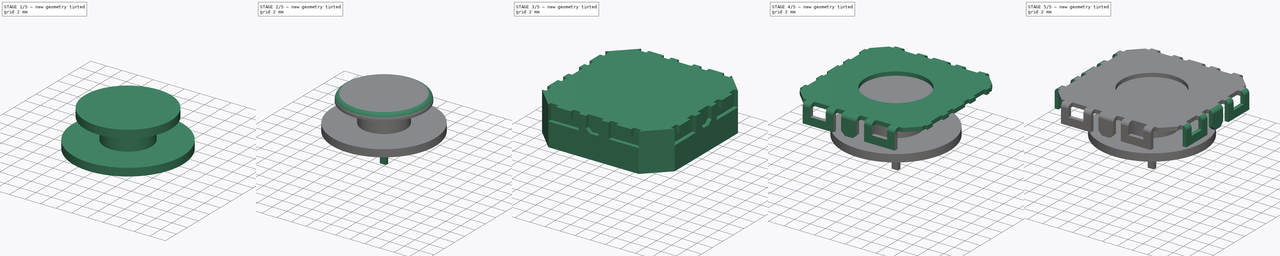
[diagram: build sequence overview — one tinted view per stage of 5, left to right]
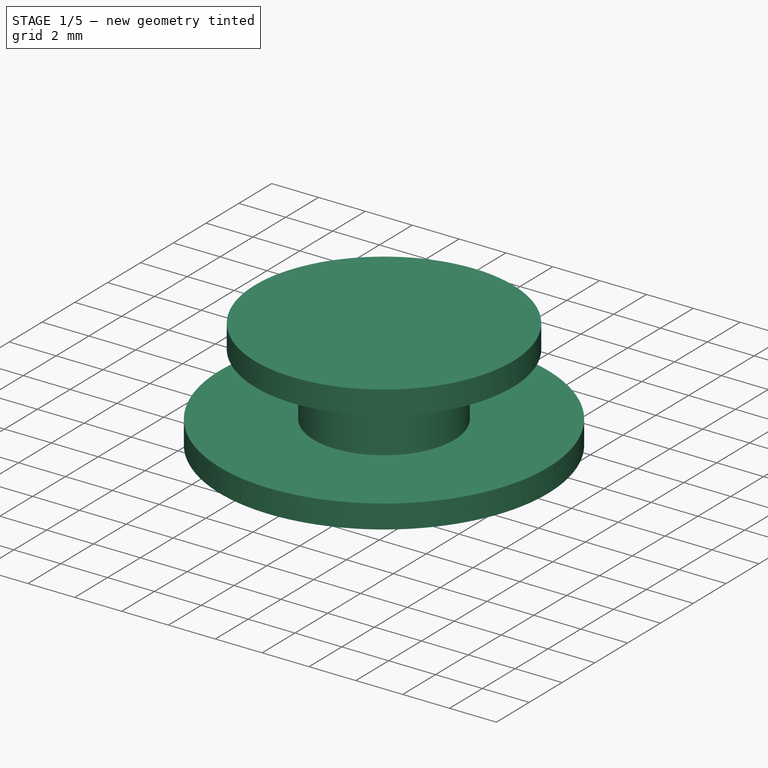
[diagram: stage 1 of 5 — iso view after this stage's code; geometry added in this stage tinted green]
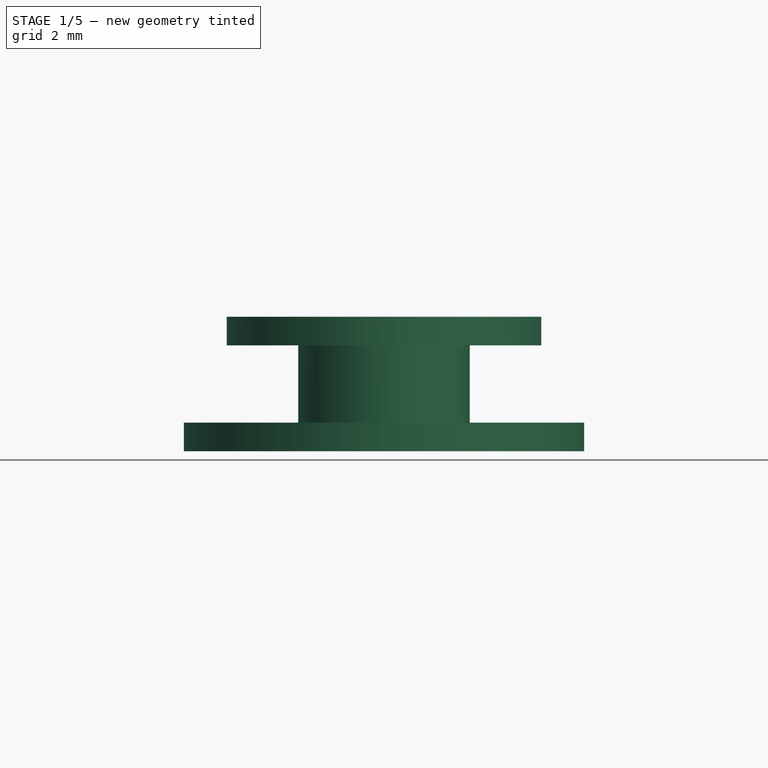
[diagram: stage 1 of 5 — front view after this stage's code; geometry added in this stage tinted green]
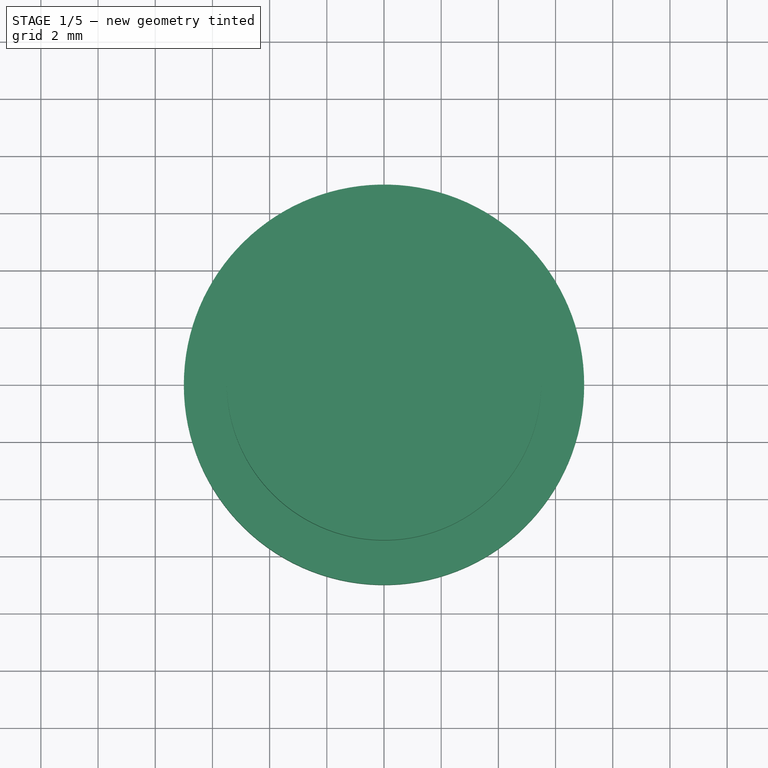
[diagram: stage 1 of 5 — top view after this stage's code; geometry added in this stage tinted green]
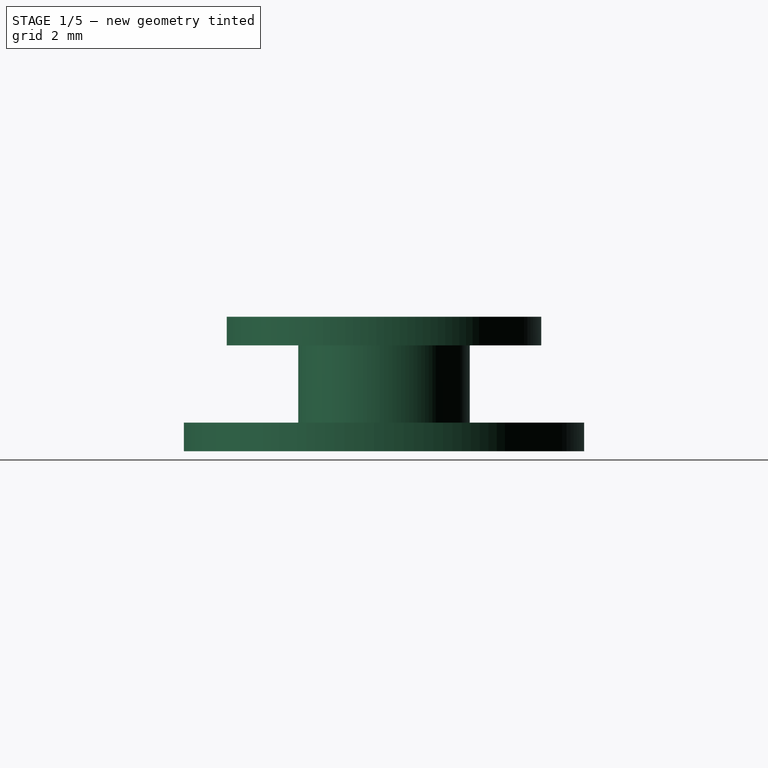
[diagram: stage 1 of 5 — right view after this stage's code; geometry added in this stage tinted green]
FCSTD DOCUMENT  (FreeCAD 0.22R37543 (Git))
Label: analog
License: All rights reserved
LicenseURL: http://en.wikipedia.org/wiki/All_rights_reserved
objects: Sketcher::SketchObject×10, PartDesign::Pad×8, PartDesign::Body×4, PartDesign::Revolution×3, App::Link×3, PartDesign::Pocket×2, PartDesign::Mirrored×2, App::Part×2, PartDesign::SubShapeBinder×1, PartDesign::PolarPattern×1, PartDesign::Fillet×1
note: 46 computed .brp shape members not serialized (recipe doc carries the construction recipe); baked Part::Feature solids carry a one-line shape summary decoded from their .brp

FEATURE [PartDesign::Body] Body002  label="Pin1"
  AllowCompound = false
  Group = -> [Sketch005,Pad004,Revolution002]
  Origin = -> Origin003
  Placement = pos=(2,0,0) rot=(0,0,1;0rad)
  Tip = -> Revolution002
FEATURE [App::Link] Link  label="Pin2"
  LinkedObject = -> Body002
FEATURE [App::Link] Link001  label="Pin3"
  LinkPlacement = pos=(-2,0,0) rot=(0,0,1;0rad)
  LinkedObject = -> Body002
  Placement = pos=(-2,0,0) rot=(0,0,1;0rad)
FEATURE [App::Part] Part001  label="Pot1"
  Group = -> [Body002,Link,Link001]
  Origin = -> Origin004
  Placement = pos=(0,-9.05,0) rot=(0,0,1;0rad)
FEATURE [App::Link] Link002  label="Pot2"
  LinkPlacement = pos=(9.05,0,0) rot=(0,0,1;1.5708rad)
  LinkedObject = -> Part001
  Placement = pos=(9.05,0,0) rot=(0,0,1;1.5708rad)
FEATURE [Sketcher::SketchObject] Sketch006
  AttachmentSupport = -> [XY_Plane005]
  FullyConstrained = true
  MapMode = 5
  Support = -> [XY_Plane005]
  sketch-geometry (1):
    g0: Circle CenterX=0 CenterY=0 CenterZ=0 NormalX=0 NormalY=0 NormalZ=1 AngleXU=0 Radius=7
  constraints (2):
    c: Coincident(g0,g-1)
    c: Diameter(g0) = 14
FEATURE [PartDesign::Pad] Pad005
  Direction = (0,0,1)
  Length = 1
  Length2 = 10
  Profile = -> Sketch006
  ReferenceAxis = -> Sketch006 [N_Axis]
  Suppressed = false
  Type = 0
FEATURE [Sketcher::SketchObject] Sketch007
  AttachmentSupport = -> [Pad005]
  FullyConstrained = true
  MapMode = 5
  Placement = pos=(0,0,1) rot=(0,0,1;0rad)
  Support = -> [Pad005]
  sketch-geometry (1):
    g0: Circle CenterX=0 CenterY=0 CenterZ=0 NormalX=0 NormalY=0 NormalZ=1 AngleXU=0 Radius=3
  constraints (2):
    c: Coincident(g0,g-1)
    c: Diameter(g0) = 6
FEATURE [PartDesign::Pad] Pad006
  BaseFeature = -> Pad005
  Direction = (0,0,1)
  Length = 2.7
  Length2 = 10
  Profile = -> Sketch007
  ReferenceAxis = -> Sketch007 [N_Axis]
  Suppressed = false
  Type = 0
FEATURE [Sketcher::SketchObject] Sketch008
  AttachmentSupport = -> [Pad006]
  FullyConstrained = true
  MapMode = 5
  Placement = pos=(0,0,3.7) rot=(0,0,1;0rad)
  Support = -> [Pad006]
  sketch-geometry (1):
    g0: Circle CenterX=0 CenterY=0 CenterZ=0 NormalX=0 NormalY=0 NormalZ=1 AngleXU=0 Radius=5.5
  constraints (2):
    c: Radius(g0) = 5.5
    c: Coincident(g0,g-1)
FEATURE [PartDesign::Pad] Pad007
  BaseFeature = -> Pad006
  Direction = (0,0,1)
  Length = 1
  Length2 = 10
  Profile = -> Sketch008
  ReferenceAxis = -> Sketch008 [N_Axis]
  Suppressed = false
  Type = 0
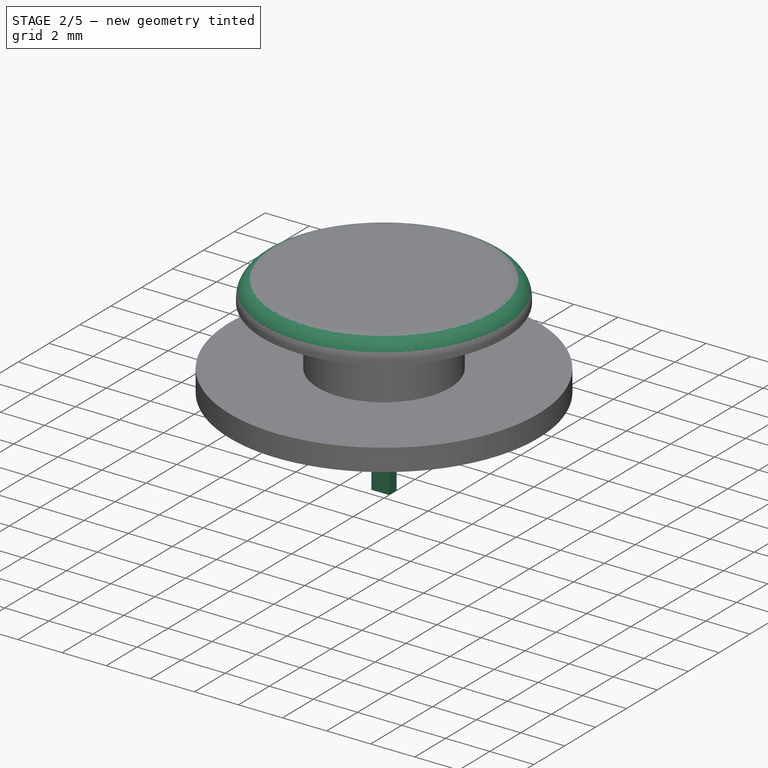
[diagram: stage 2 of 5 — iso view after this stage's code; geometry added in this stage tinted green]
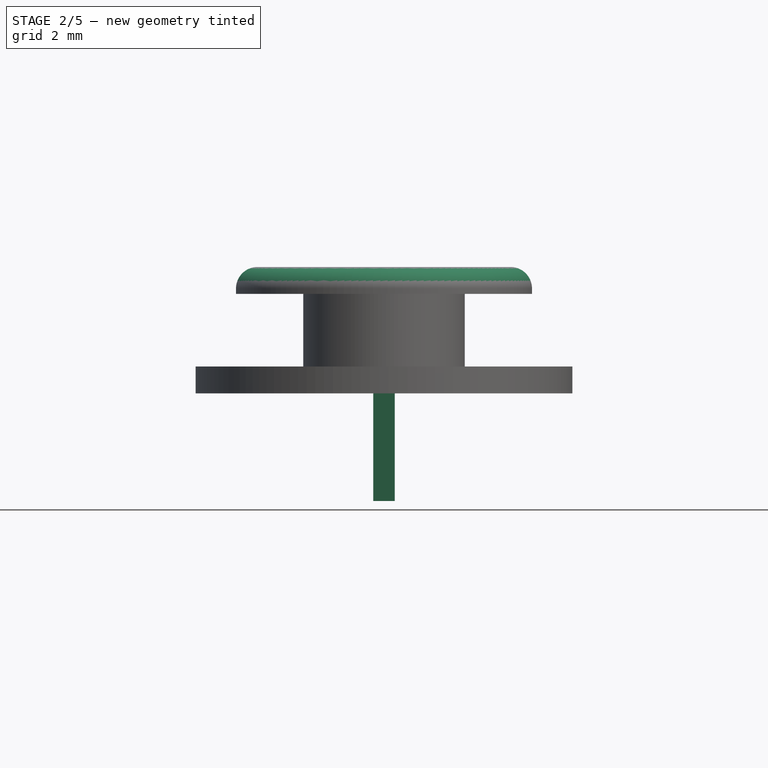
[diagram: stage 2 of 5 — front view after this stage's code; geometry added in this stage tinted green]
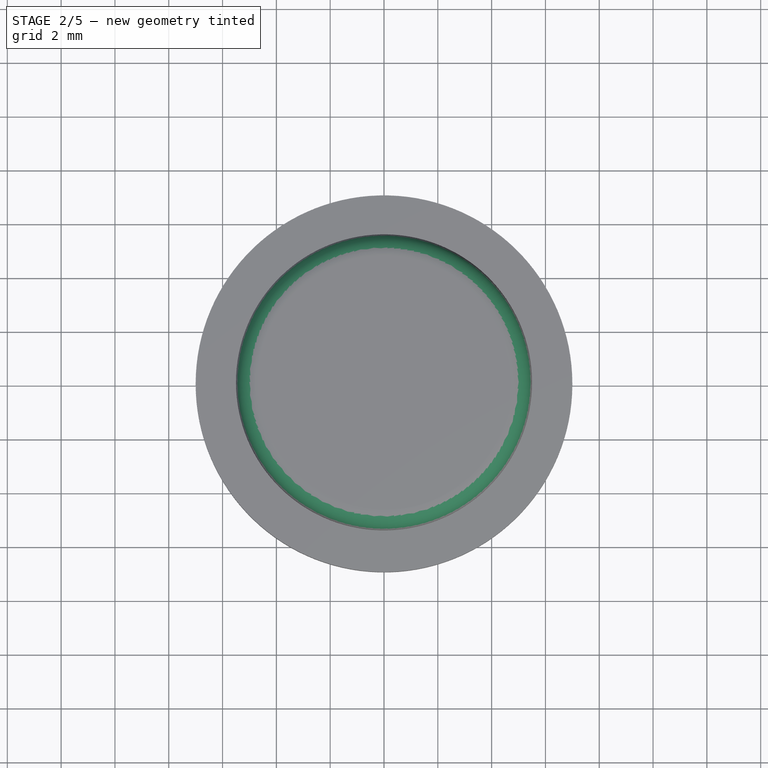
[diagram: stage 2 of 5 — top view after this stage's code; geometry added in this stage tinted green]
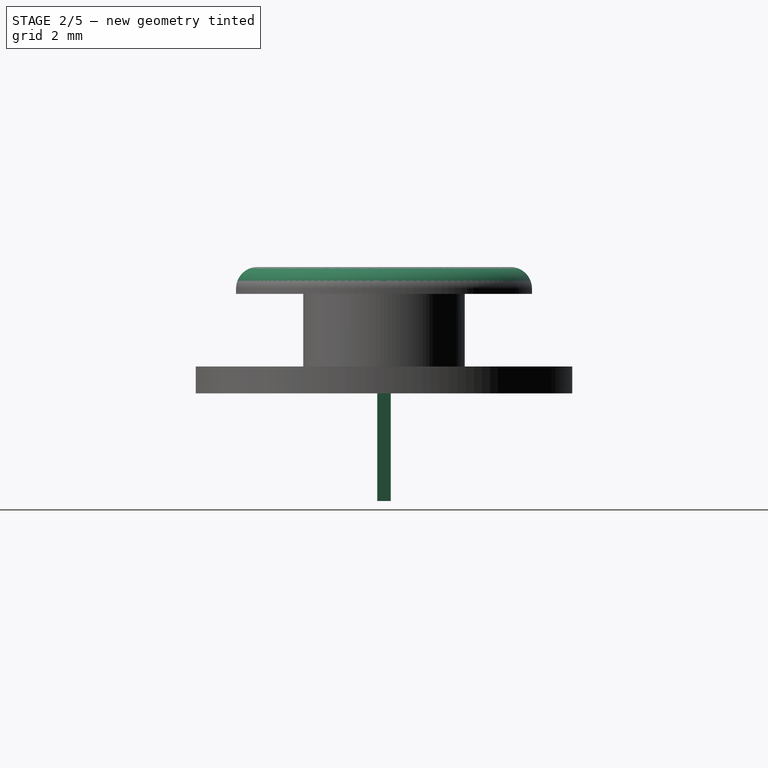
[diagram: stage 2 of 5 — right view after this stage's code; geometry added in this stage tinted green]
FEATURE [PartDesign::Body] Body001  label="TopPlate"
  AllowCompound = false
  Group = -> [Binder,Sketch001,Pad001,Revolution,Sketch003,Pad002,Mirrored,Revolution001,Sketch004,Pad003,Mirrored001]
  Origin = -> Origin002
  Tip = -> Mirrored001
FEATURE [Sketcher::SketchObject] Sketch005
  AttachmentSupport = -> [XY_Plane003]
  FullyConstrained = true
  MapMode = 5
  Support = -> [XY_Plane003]
  sketch-geometry (5):
    g0: LineSegment StartX=-0.4 StartY=-0.25 StartZ=0 EndX=0.4 EndY=-0.25 EndZ=0
    g1: LineSegment StartX=0.4 StartY=-0.25 StartZ=0 EndX=0.4 EndY=0.25 EndZ=0
    g2: LineSegment StartX=0.4 StartY=0.25 StartZ=0 EndX=-0.4 EndY=0.25 EndZ=0
    g3: LineSegment StartX=-0.4 StartY=0.25 StartZ=0 EndX=-0.4 EndY=-0.25 EndZ=0
    g4: GeomPoint X=0 Y=0 Z=0
  constraints (12):
    c: Coincident(g0,g1)
    c: Coincident(g1,g2)
    c: Coincident(g2,g3)
    c: Coincident(g3,g0)
    c: Horizontal(g0)
    c: Horizontal(g2)
    c: Vertical(g1)
    c: Vertical(g3)
    c: Symmetric(g2,g0,g4)
    c: Coincident(g4,g-1)
    c: DistanceX(g2,g2) = 0.8
    c: DistanceY(g1,g1) = 0.5
FEATURE [PartDesign::Pad] Pad004
  Direction = (0,0,1)
  Length = 4
  Length2 = 10
  Profile = -> Sketch005
  ReferenceAxis = -> Sketch005 [N_Axis]
  Reversed = true
  Suppressed = false
  Type = 0
FEATURE [PartDesign::Revolution] Revolution002
  Angle = 90
  Angle2 = 60
  Axis = (-1,0,0)
  Base = (0.4,0.25,0)
  BaseFeature = -> Pad004
  Profile = -> Pad004 [Face5]
  ReferenceAxis = -> Pad004 [Edge9]
  Suppressed = false
  Type = 0
FEATURE [PartDesign::Fillet] Fillet
  Base = -> Pad007 [Edge3]
  BaseFeature = -> Pad007
  Radius = 0.8
  SupportTransform = false
  Suppressed = false
  UseAllEdges = false
FEATURE [Sketcher::SketchObject] Sketch009
  AttachmentSupport = -> [Fillet]
  FullyConstrained = true
  MapMode = 5
  Placement = pos=(0,0,0) rot=(1,0,0;3.14159rad)
  Support = -> [Fillet]
  sketch-geometry (4):
    g0: ArcOfCircle CenterX=-0.00212434 CenterY=0 CenterZ=0 NormalX=0 NormalY=0 NormalZ=1 AngleXU=0 Radius=2 StartAngle=2.29353 EndAngle=3.98965
    g1: ArcOfCircle CenterX=0.00212434 CenterY=0 CenterZ=0 NormalX=0 NormalY=0 NormalZ=1 AngleXU=0 Radius=2 StartAngle=5.43512 EndAngle=7.13125
    g2: LineSegment StartX=-1.325 StartY=-1.5 StartZ=0 EndX=1.325 EndY=-1.5 EndZ=0
    g3: LineSegment StartX=-1.325 StartY=1.5 StartZ=0 EndX=1.325 EndY=1.5 EndZ=0
  constraints (13):
    c: PointOnObject(g0,g-1)
    c: Equal(g0,g1)
    c: Radius(g0) = 2
    c: Coincident(g2,g0)
    c: Coincident(g2,g1)
    c: Horizontal(g2)
    c: Coincident(g3,g0)
    c: Coincident(g3,g1)
    c: Horizontal(g3)
    c: Vertical(g0,g0)
    c: Symmetric(g0,g1,g-2)
    c: DistanceX(g3,g3) = 2.65
    c: Distance(g2,g3) = 3
FEATURE [PartDesign::Pocket] Pocket001
  BaseFeature = -> Fillet
  Direction = (0,0,1)
  Length = 2.7
  Length2 = 5
  Profile = -> Sketch009
  ReferenceAxis = -> Sketch009 [N_Axis]
  Suppressed = false
  Type = 0
FEATURE [PartDesign::Body] Body003  label="Nub"
  AllowCompound = false
  Group = -> [Sketch006,Pad005,Sketch007,Pad006,Sketch008,Pad007,Fillet,Sketch009,Pocket001]
  Origin = -> Origin005
  Placement = pos=(0,0,6) rot=(0,0,1;0rad)
  Tip = -> Pocket001
FEATURE [App::Part] Part  label="AnalogJoystick"
  Group = -> [Body,Body001,Part001,Link002,Body003]
  Origin = -> Origin
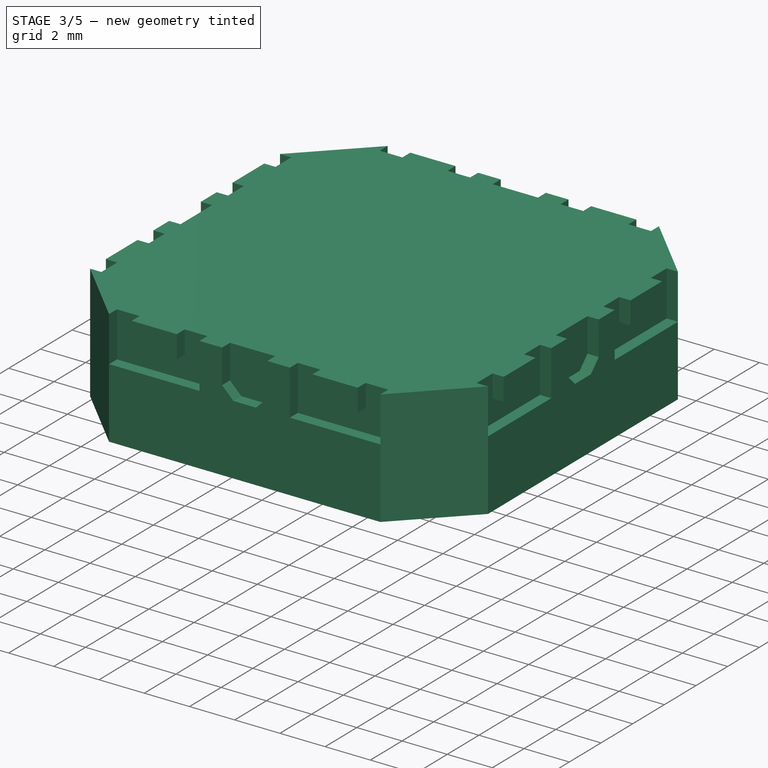
[diagram: stage 3 of 5 — iso view after this stage's code; geometry added in this stage tinted green]
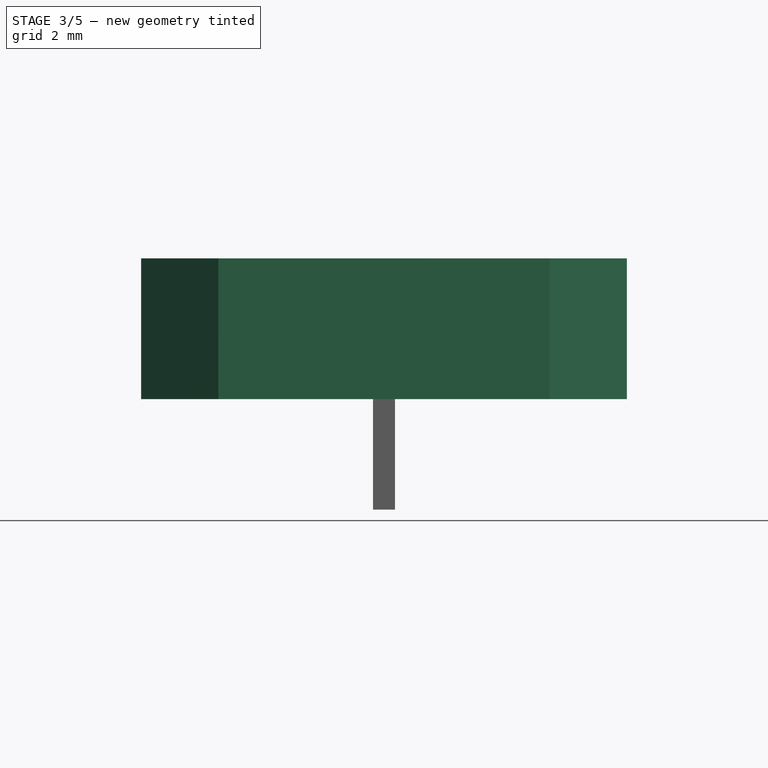
[diagram: stage 3 of 5 — front view after this stage's code; geometry added in this stage tinted green]
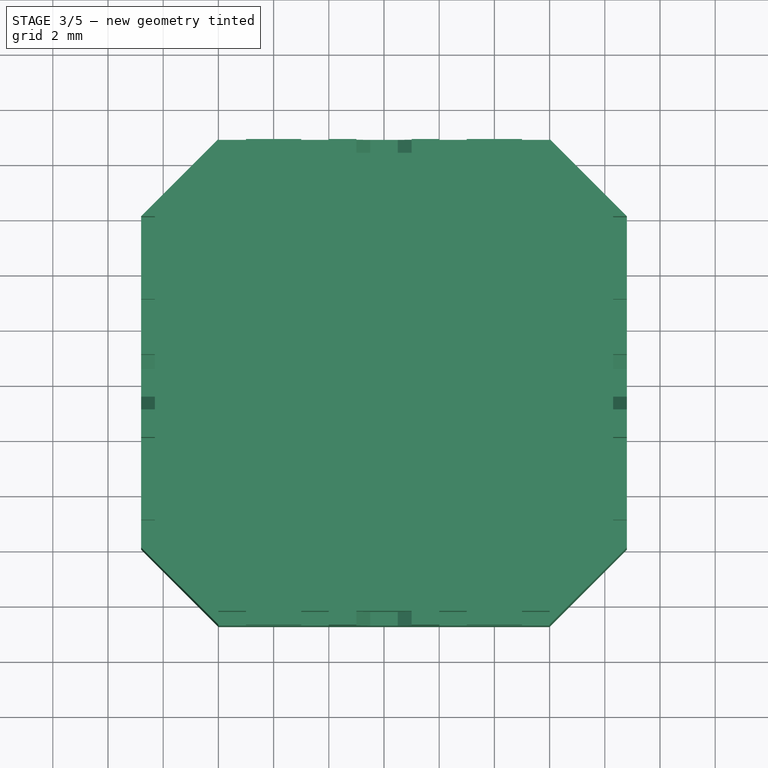
[diagram: stage 3 of 5 — top view after this stage's code; geometry added in this stage tinted green]
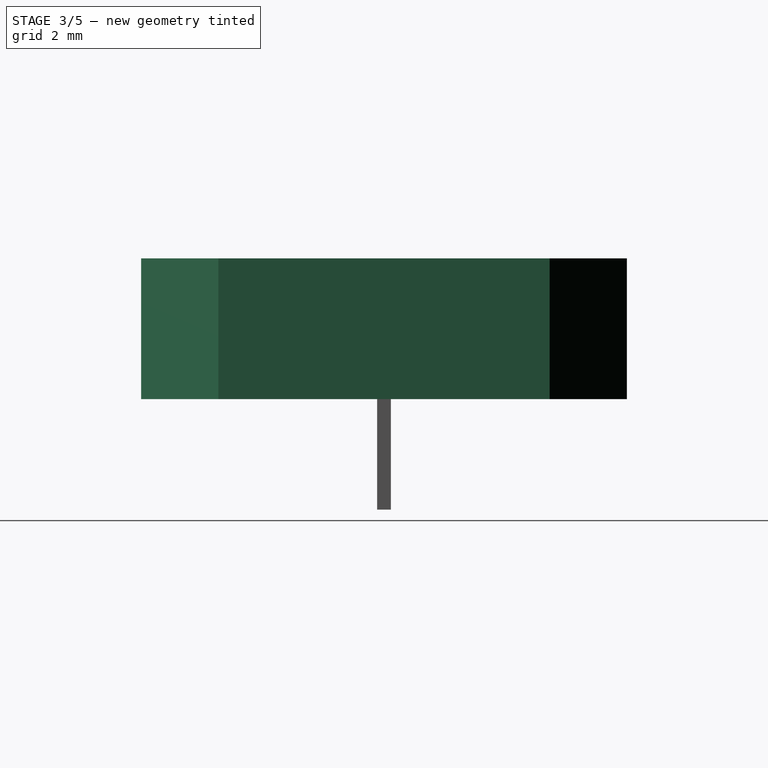
[diagram: stage 3 of 5 — right view after this stage's code; geometry added in this stage tinted green]
FEATURE [Sketcher::SketchObject] Sketch
  AttachmentSupport = -> [XY_Plane001]
  FullyConstrained = true
  MapMode = 5
  Support = -> [XY_Plane001]
  sketch-geometry (17):
    g0: LineSegment StartX=8.8 StartY=-6 StartZ=0 EndX=8.8 EndY=6 EndZ=0
    g1: LineSegment StartX=6 StartY=8.8 StartZ=0 EndX=-6 EndY=8.8 EndZ=0
    g2: LineSegment StartX=-8.8 StartY=6 StartZ=0 EndX=-8.8 EndY=-6 EndZ=0
    g3: LineSegment StartX=-6 StartY=-8.8 StartZ=0 EndX=6 EndY=-8.8 EndZ=0
    g4: GeomPoint X=0 Y=0 Z=0
    g5: ArcOfCircle CenterX=-6 CenterY=6 CenterZ=0 NormalX=0 NormalY=0 NormalZ=1 AngleXU=0 Radius=2.8 StartAngle=1.5708 EndAngle=3.14159
    g6: GeomPoint X=-8.8 Y=8.8 Z=0
    g7: LineSegment StartX=-6 StartY=8.8 StartZ=0 EndX=-8.8 EndY=6 EndZ=0
    g8: ArcOfCircle CenterX=6 CenterY=6 CenterZ=0 NormalX=0 NormalY=0 NormalZ=1 AngleXU=0 Radius=2.8 StartAngle=0 EndAngle=1.5708
    g9: GeomPoint X=8.8 Y=8.8 Z=0
    g10: LineSegment StartX=8.8 StartY=6 StartZ=0 EndX=6 EndY=8.8 EndZ=0
    g11: ArcOfCircle CenterX=6 CenterY=-6 CenterZ=0 NormalX=0 NormalY=0 NormalZ=1 AngleXU=0 Radius=2.8 StartAngle=4.71239 EndAngle=6.28319
    g12: GeomPoint X=8.8 Y=-8.8 Z=0
    g13: LineSegment StartX=6 StartY=-8.8 StartZ=0 EndX=8.8 EndY=-6 EndZ=0
    g14: ArcOfCircle CenterX=-6 CenterY=-6 CenterZ=0 NormalX=0 NormalY=0 NormalZ=1 AngleXU=0 Radius=2.8 StartAngle=3.14159 EndAngle=4.71239
    g15: GeomPoint X=-8.8 Y=-8.8 Z=0
    g16: LineSegment StartX=-8.8 StartY=-6 StartZ=0 EndX=-6 EndY=-8.8 EndZ=0
  constraints (36):
    c: Vertical(g0)
    c: Vertical(g2)
    c: Horizontal(g1)
    c: Horizontal(g3)
    c: Symmetric(g6,g12,g4)
    c: PointOnObject(g6,g2)
    c: PointOnObject(g6,g1)
    c: Tangent(g2,g5) = -1.5708
    c: Tangent(g1,g5) = -1.5708
    c: Coincident(g7,g2)
    c: Coincident(g7,g1)
    c: PointOnObject(g9,g1)
    c: PointOnObject(g9,g0)
    c: Tangent(g1,g8) = -1.5708
    c: Tangent(g0,g8) = -1.5708
    c: Coincident(g10,g1)
    c: Coincident(g10,g0)
    c: PointOnObject(g12,g0)
    c: PointOnObject(g12,g3)
    c: Tangent(g0,g11) = -1.5708
    c: Tangent(g3,g11) = -1.5708
    c: Coincident(g13,g0)
    c: Coincident(g13,g3)
    c: PointOnObject(g15,g3)
    c: PointOnObject(g15,g2)
    c: Tangent(g3,g14) = -1.5708
    c: Tangent(g2,g14) = -1.5708
    c: Coincident(g16,g3)
    c: Coincident(g16,g2)
    c: Equal(g14,g5)
    c: Equal(g5,g8)
    c: Equal(g8,g11)
    c: Distance(g3,g1) = 17.6
    c: Coincident(g4,g-1)
    c: DistanceX(g2,g0) = 17.6
    c: DistanceX(g16,g16) = 2.8
FEATURE [PartDesign::Pad] Pad
  Direction = (0,0,1)
  Length = 5.1
  Length2 = 10
  Profile = -> Sketch
  ReferenceAxis = -> Sketch [N_Axis]
  Suppressed = false
  Type = 0
FEATURE [Sketcher::SketchObject] Sketch002
  AttachmentSupport = -> [Pad]
  ExternalGeometry = -> [Pad]
  FullyConstrained = true
  MapMode = 5
  Placement = pos=(0,-8.8,0) rot=(1,0,0;1.5708rad)
  Support = -> [Pad]
  sketch-geometry (26):
    g0: LineSegment StartX=-3 StartY=5.1 StartZ=0 EndX=-3 EndY=4.1 EndZ=0
    g1: LineSegment StartX=-3 StartY=4.1 StartZ=0 EndX=-5 EndY=4.1 EndZ=0
    g2: LineSegment StartX=-5 StartY=4.1 StartZ=0 EndX=-5 EndY=5.1 EndZ=0
    g3: LineSegment StartX=-5 StartY=5.1 StartZ=0 EndX=-6 EndY=5.1 EndZ=0
    g4: LineSegment StartX=-6 StartY=5.1 StartZ=0 EndX=-6 EndY=3.1 EndZ=0
    g5: LineSegment StartX=-6 StartY=3.1 StartZ=0 EndX=-2 EndY=3.1 EndZ=0
    g6: LineSegment StartX=-2 StartY=3.1 StartZ=0 EndX=-2 EndY=5.1 EndZ=0
    g7: LineSegment StartX=-2 StartY=5.1 StartZ=0 EndX=-3 EndY=5.1 EndZ=0
    g8: LineSegment StartX=-1 StartY=5.1 StartZ=0 EndX=-1 EndY=3.6 EndZ=0
    g9: LineSegment StartX=1 StartY=3.6 StartZ=0 EndX=1 EndY=5.1 EndZ=0
    g10: LineSegment StartX=1 StartY=5.1 StartZ=0 EndX=-1 EndY=5.1 EndZ=0
    g11: LineSegment StartX=2 StartY=5.1 StartZ=0 EndX=2 EndY=3.1 EndZ=0
    g12: LineSegment StartX=2 StartY=3.1 StartZ=0 EndX=6 EndY=3.1 EndZ=0
    g13: LineSegment StartX=6 StartY=3.1 StartZ=0 EndX=6 EndY=5.1 EndZ=0
    g14: LineSegment StartX=6 StartY=5.1 StartZ=0 EndX=5 EndY=5.1 EndZ=0
    g15: LineSegment StartX=5 StartY=5.1 StartZ=0 EndX=5 EndY=4.1 EndZ=0
    g16: LineSegment StartX=5 StartY=4.1 StartZ=0 EndX=3 EndY=4.1 EndZ=0
    g17: LineSegment StartX=3 StartY=4.1 StartZ=0 EndX=3 EndY=5.1 EndZ=0
    g18: LineSegment StartX=3 StartY=5.1 StartZ=0 EndX=2 EndY=5.1 EndZ=0
    g19: LineSegment StartX=-0.5 StartY=3.1 StartZ=0 EndX=0.5 EndY=3.1 EndZ=0
    g20: ArcOfCircle CenterX=-0.5 CenterY=3.6 CenterZ=0 NormalX=0 NormalY=0 NormalZ=1 AngleXU=0 Radius=0.5 StartAngle=3.14159 EndAngle=4.71239
    g21: GeomPoint X=-1 Y=3.1 Z=0
    g22: LineSegment StartX=-1 StartY=3.6 StartZ=0 EndX=-0.5 EndY=3.1 EndZ=0
    g23: ArcOfCircle CenterX=0.5 CenterY=3.6 CenterZ=0 NormalX=0 NormalY=0 NormalZ=1 AngleXU=0 Radius=0.5 StartAngle=4.71239 EndAngle=6.28319
    g24: GeomPoint X=1 Y=3.1 Z=0
    g25: LineSegment StartX=0.5 StartY=3.1 StartZ=0 EndX=1 EndY=3.6 EndZ=0
  constraints (68):
    c: PointOnObject(g0,g-3)
    c: Vertical(g0)
    c: Coincident(g0,g1)
    c: Horizontal(g1)
    c: Coincident(g1,g2)
    c: PointOnObject(g2,g-3)
    c: Vertical(g2)
    c: Coincident(g2,g3)
    c: Horizontal(g3)
    c: Coincident(g3,g4)
    c: Vertical(g4)
    c: Coincident(g4,g5)
    c: Horizontal(g5)
    c: Coincident(g5,g6)
    c: PointOnObject(g6,g-3)
    c: Vertical(g6)
    c: Coincident(g6,g7)
    c: Coincident(g7,g0)
    c: PointOnObject(g8,g-3)
    c: Vertical(g8)
    c: Vertical(g9)
    c: Coincident(g9,g10)
    c: Coincident(g10,g8)
    c: Horizontal(g21,g24)
    c: Vertical(g11)
    c: Coincident(g11,g12)
    c: Horizontal(g12)
    c: Coincident(g12,g13)
    c: Vertical(g13)
    c: Coincident(g13,g14)
    c: PointOnObject(g14,g-3)
    c: Coincident(g14,g15)
    c: Vertical(g15)
    c: Coincident(g15,g16)
    c: Horizontal(g16)
    c: Coincident(g16,g17)
    c: PointOnObject(g17,g-3)
    c: Vertical(g17)
    c: Coincident(g17,g18)
    c: Coincident(g18,g11)
    c: Symmetric(g0,g16,g-2)
    c: Symmetric(g6,g11,g-2)
    c: Symmetric(g8,g9,g-2)
    c: Symmetric(g3,g13,g-2)
    c: Equal(g3,g7)
    c: Equal(g18,g14)
    c: DistanceX(g10,g10) = 2
    c: DistanceX(g18,g18) = 1
    c: DistanceX(g1,g1) = 2
    c: DistanceX(g24,g11) = 1
    c: PointOnObject(g21,g8)
    c: PointOnObject(g21,g19)
    c: Tangent(g8,g20) = -1.5708
    c: Tangent(g19,g20) = -1.5708
    c: Coincident(g22,g8)
    c: Coincident(g22,g19)
    c: PointOnObject(g24,g9)
    c: PointOnObject(g24,g19)
    c: Tangent(g9,g23) = -1.5708
    c: Tangent(g19,g23) = -1.5708
    c: Coincident(g25,g9)
    c: Coincident(g25,g19)
    c: Equal(g22,g25)
    c: Horizontal(g19,g5)
    c: DistanceY(g4,g4) = 2
    c: DistanceY(g2,g2) = 1
    c: Horizontal(g11,g24)
    c: DistanceX(g22,g22) = 0.5
FEATURE [PartDesign::Pocket] Pocket
  BaseFeature = -> Pad
  Direction = (0,1,-2e-16)
  Length = 0.5
  Length2 = 5
  Profile = -> Sketch002
  ReferenceAxis = -> Sketch002 [N_Axis]
  Suppressed = false
  Type = 0
FEATURE [PartDesign::PolarPattern] PolarPattern
  Angle = 360
  Axis = -> Z_Axis001
  BaseFeature = -> Pocket
  Mode = 0
  Occurrences = 4
  Offset = 120
  Originals = -> [Pocket]
  Suppressed = false
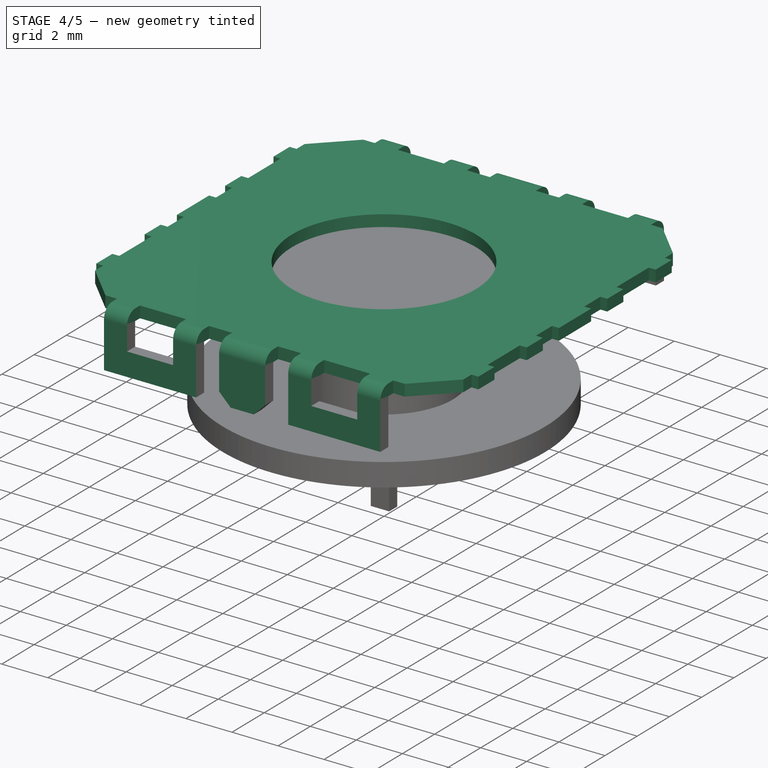
[diagram: stage 4 of 5 — iso view after this stage's code; geometry added in this stage tinted green]
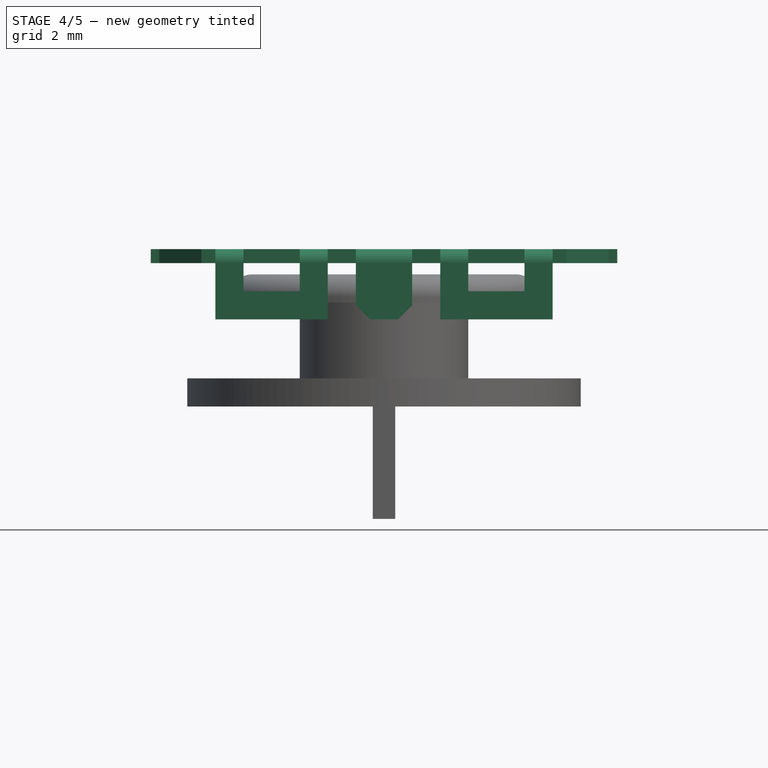
[diagram: stage 4 of 5 — front view after this stage's code; geometry added in this stage tinted green]
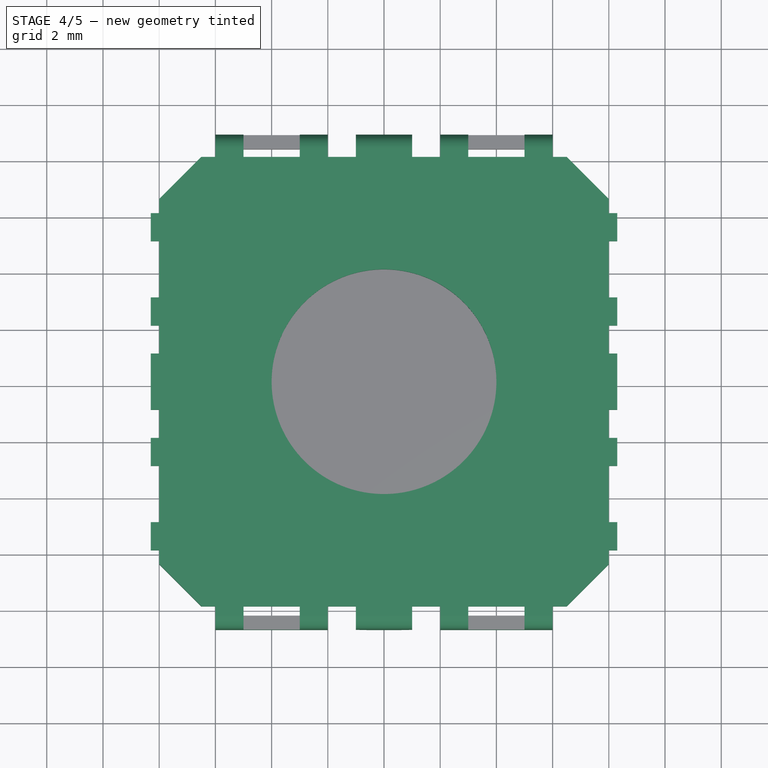
[diagram: stage 4 of 5 — top view after this stage's code; geometry added in this stage tinted green]
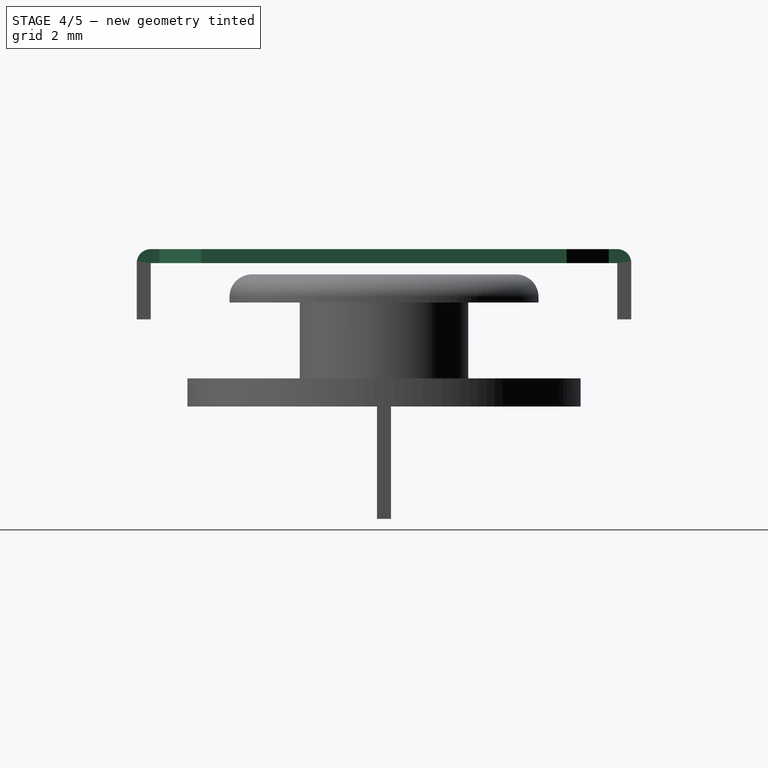
[diagram: stage 4 of 5 — right view after this stage's code; geometry added in this stage tinted green]
FEATURE [PartDesign::SubShapeBinder] Binder
  BindCopyOnChange = 0
  BindMode = 0
  ClaimChildren = false
  Context = -> Part [Body001.Binder.]
  Fuse = false
  MakeFace = true
  OffsetFill = false
  OffsetIntersection = false
  OffsetJoinType = 0
  OffsetOpenResult = false
  PartialLoad = false
  Relative = true
  Support = -> [Body[Pad.Face10]]
  _Version = 2
FEATURE [Sketcher::SketchObject] Sketch001
  AttachmentSupport = -> [Binder]
  ExternalGeometry = -> [Binder]
  FullyConstrained = false
  MapMode = 5
  Placement = pos=(0,0,5.1) rot=(0,0,1;0rad)
  Support = -> [Binder]
  sketch-geometry (94):
    g0: LineSegment StartX=6.5 StartY=8 StartZ=0 EndX=6 EndY=8 EndZ=0
    g1: GeomPoint X=0 Y=0 Z=0
    g2: ArcOfCircle CenterX=-6.5 CenterY=6.5 CenterZ=0 NormalX=0 NormalY=0 NormalZ=1 AngleXU=0 Radius=1.5 StartAngle=1.5708 EndAngle=3.14159
    g3: GeomPoint X=-7.85 Y=8 Z=0
    g4: LineSegment StartX=-6.5 StartY=8 StartZ=0 EndX=-8 EndY=6.5 EndZ=0
    g5: ArcOfCircle CenterX=6.5 CenterY=6.5 CenterZ=0 NormalX=0 NormalY=0 NormalZ=1 AngleXU=0 Radius=1.5 StartAngle=0 EndAngle=1.5708
    g6: GeomPoint X=7.85 Y=8 Z=0
    g7: LineSegment StartX=8 StartY=6.5 StartZ=0 EndX=6.5 EndY=8 EndZ=0
    g8: LineSegment StartX=-5 StartY=8 StartZ=0 EndX=-5 EndY=8.3 EndZ=0
    g9: LineSegment StartX=-5 StartY=8.3 StartZ=0 EndX=-6 EndY=8.3 EndZ=0
    g10: LineSegment StartX=-6 StartY=8.3 StartZ=0 EndX=-6 EndY=8 EndZ=0
    g11: LineSegment StartX=1 StartY=8 StartZ=0 EndX=1 EndY=8.3 EndZ=0
    g12: LineSegment StartX=1 StartY=8.3 StartZ=0 EndX=-1 EndY=8.3 EndZ=0
    g13: LineSegment StartX=-1 StartY=8.3 StartZ=0 EndX=-1 EndY=8 EndZ=0
    g14: LineSegment StartX=-2 StartY=8 StartZ=0 EndX=-2 EndY=8.3 EndZ=0
    g15: LineSegment StartX=-2 StartY=8.3 StartZ=0 EndX=-3 EndY=8.3 EndZ=0
    g16: LineSegment StartX=-3 StartY=8.3 StartZ=0 EndX=-3 EndY=8 EndZ=0
    g17: LineSegment StartX=3 StartY=8 StartZ=0 EndX=3 EndY=8.3 EndZ=0
    g18: LineSegment StartX=3 StartY=8.3 StartZ=0 EndX=2 EndY=8.3 EndZ=0
    g19: LineSegment StartX=2 StartY=8.3 StartZ=0 EndX=2 EndY=8 EndZ=0
    g20: LineSegment StartX=6 StartY=8 StartZ=0 EndX=6 EndY=8.3 EndZ=0
    g21: LineSegment StartX=6 StartY=8.3 StartZ=0 EndX=5 EndY=8.3 EndZ=0
    g22: LineSegment StartX=5 StartY=8.3 StartZ=0 EndX=5 EndY=8 EndZ=0
    g23: LineSegment StartX=-6 StartY=8 StartZ=0 EndX=-6.5 EndY=8 EndZ=0
    g24: LineSegment StartX=-3 StartY=8 StartZ=0 EndX=-5 EndY=8 EndZ=0
    g25: LineSegment StartX=-1 StartY=8 StartZ=0 EndX=-2 EndY=8 EndZ=0
    g26: LineSegment StartX=2 StartY=8 StartZ=0 EndX=1 EndY=8 EndZ=0
    g27: LineSegment StartX=5 StartY=8 StartZ=0 EndX=3 EndY=8 EndZ=0
    g28: LineSegment StartX=-8 StartY=6.5 StartZ=0 EndX=-8 EndY=6 EndZ=0
    g29: LineSegment StartX=-8 StartY=6 StartZ=0 EndX=-8.3 EndY=6 EndZ=0
    g30: LineSegment StartX=-8.3 StartY=6 StartZ=0 EndX=-8.3 EndY=5 EndZ=0
    g31: LineSegment StartX=-8.3 StartY=5 StartZ=0 EndX=-8 EndY=5 EndZ=0
    g32: LineSegment StartX=-8 StartY=5 StartZ=0 EndX=-8 EndY=3 EndZ=0
    g33: LineSegment StartX=-8 StartY=3 StartZ=0 EndX=-8.3 EndY=3 EndZ=0
    g34: LineSegment StartX=-8.3 StartY=3 StartZ=0 EndX=-8.3 EndY=2 EndZ=0
    g35: LineSegment StartX=-8.3 StartY=2 StartZ=0 EndX=-8 EndY=2 EndZ=0
    g36: LineSegment StartX=-8 StartY=2 StartZ=0 EndX=-8 EndY=1 EndZ=0
    g37: LineSegment StartX=-8 StartY=-2 StartZ=0 EndX=-8.3 EndY=-2 EndZ=0
    g38: LineSegment StartX=-8.3 StartY=-2 StartZ=0 EndX=-8.3 EndY=-3 EndZ=0
    g39: LineSegment StartX=-8.3 StartY=-3 StartZ=0 EndX=-8 EndY=-3 EndZ=0
    g40: LineSegment StartX=-8 StartY=-3 StartZ=0 EndX=-8 EndY=-5 EndZ=0
    g41: LineSegment StartX=-8 StartY=-5 StartZ=0 EndX=-8.3 EndY=-5 EndZ=0
    g42: LineSegment StartX=-8.3 StartY=-5 StartZ=0 EndX=-8.3 EndY=-6 EndZ=0
    g43: LineSegment StartX=-8.3 StartY=-6 StartZ=0 EndX=-8 EndY=-6 EndZ=0
    g44: LineSegment StartX=-8 StartY=-6 StartZ=0 EndX=-8 EndY=-6.5 EndZ=0
    g45: LineSegment StartX=-8 StartY=-6.5 StartZ=0 EndX=-6.5 EndY=-8 EndZ=0
    g46: LineSegment StartX=-6.5 StartY=-8 StartZ=0 EndX=-6 EndY=-8 EndZ=0
    g47: LineSegment StartX=-6 StartY=-8 StartZ=0 EndX=-6 EndY=-8.3 EndZ=0
    g48: LineSegment StartX=-6 StartY=-8.3 StartZ=0 EndX=-5 EndY=-8.3 EndZ=0
    g49: LineSegment StartX=-5 StartY=-8.3 StartZ=0 EndX=-5 EndY=-8 EndZ=0
    g50: LineSegment StartX=-5 StartY=-8 StartZ=0 EndX=-3 EndY=-8 EndZ=0
    g51: LineSegment StartX=-3 StartY=-8 StartZ=0 EndX=-3 EndY=-8.3 EndZ=0
    g52: LineSegment StartX=-3 StartY=-8.3 StartZ=0 EndX=-2 EndY=-8.3 EndZ=0
    g53: LineSegment StartX=-2 StartY=-8.3 StartZ=0 EndX=-2 EndY=-8 EndZ=0
    g54: LineSegment StartX=-2 StartY=-8 StartZ=0 EndX=-1 EndY=-8 EndZ=0
    g55: LineSegment StartX=-1 StartY=-8 StartZ=0 EndX=-1 EndY=-8.3 EndZ=0
    g56: LineSegment StartX=-1 StartY=-8.3 StartZ=0 EndX=1 EndY=-8.3 EndZ=0
    g57: LineSegment StartX=1 StartY=-8.3 StartZ=0 EndX=1 EndY=-8 EndZ=0
    g58: LineSegment StartX=1 StartY=-8 StartZ=0 EndX=2 EndY=-8 EndZ=0
    g59: LineSegment StartX=2 StartY=-8 StartZ=0 EndX=2 EndY=-8.3 EndZ=0
    g60: LineSegment StartX=2 StartY=-8.3 StartZ=0 EndX=3 EndY=-8.3 EndZ=0
    g61: LineSegment StartX=3 StartY=-8.3 StartZ=0 EndX=3 EndY=-8 EndZ=0
    g62: LineSegment StartX=3 StartY=-8 StartZ=0 EndX=5 EndY=-8 EndZ=0
    g63: LineSegment StartX=5 StartY=-8 StartZ=0 EndX=5 EndY=-8.3 EndZ=0
    g64: LineSegment StartX=5 StartY=-8.3 StartZ=0 EndX=6 EndY=-8.3 EndZ=0
    g65: LineSegment StartX=6 StartY=-8.3 StartZ=0 EndX=6 EndY=-8 EndZ=0
    g66: LineSegment StartX=6 StartY=-8 StartZ=0 EndX=6.5 EndY=-8 EndZ=0
    g67: LineSegment StartX=6.5 StartY=-8 StartZ=0 EndX=8 EndY=-6.5 EndZ=0
    g68: LineSegment StartX=8 StartY=-6.5 StartZ=0 EndX=8 EndY=-6 EndZ=0
    g69: LineSegment StartX=8 StartY=-6 StartZ=0 EndX=8.3 EndY=-6 EndZ=0
    g70: LineSegment StartX=8.3 StartY=-6 StartZ=0 EndX=8.3 EndY=-5 EndZ=0
    g71: LineSegment StartX=8.3 StartY=-5 StartZ=0 EndX=8 EndY=-5 EndZ=0
    g72: LineSegment StartX=8 StartY=-5 StartZ=0 EndX=8 EndY=-3 EndZ=0
    g73: LineSegment StartX=8 StartY=-3 StartZ=0 EndX=8.3 EndY=-3 EndZ=0
    g74: LineSegment StartX=8.3 StartY=-3 StartZ=0 EndX=8.3 EndY=-2 EndZ=0
    g75: LineSegment StartX=8.3 StartY=-2 StartZ=0 EndX=8 EndY=-2 EndZ=0
    g76: LineSegment StartX=8 StartY=-2 StartZ=0 EndX=8 EndY=-1 EndZ=0
    g77: LineSegment StartX=8 StartY=-1 StartZ=0 EndX=8.3 EndY=-1 EndZ=0
    g78: LineSegment StartX=8.3 StartY=-1 StartZ=0 EndX=8.3 EndY=1 EndZ=0
    g79: LineSegment StartX=8.3 StartY=1 StartZ=0 EndX=8 EndY=1 EndZ=0
    g80: LineSegment StartX=8 StartY=1 StartZ=0 EndX=8 EndY=2 EndZ=0
    g81: LineSegment StartX=8 StartY=2 StartZ=0 EndX=8.3 EndY=2 EndZ=0
    g82: LineSegment StartX=8.3 StartY=2 StartZ=0 EndX=8.3 EndY=3 EndZ=0
    g83: LineSegment StartX=8.3 StartY=3 StartZ=0 EndX=8 EndY=3 EndZ=0
    g84: LineSegment StartX=8 StartY=3 StartZ=0 EndX=8 EndY=5 EndZ=0
    g85: LineSegment StartX=8 StartY=5 StartZ=0 EndX=8.3 EndY=5 EndZ=0
    g86: LineSegment StartX=8.3 StartY=5 StartZ=0 EndX=8.3 EndY=6 EndZ=0
    g87: LineSegment StartX=8.3 StartY=6 StartZ=0 EndX=8 EndY=6 EndZ=0
    g88: LineSegment StartX=8 StartY=6 StartZ=0 EndX=8 EndY=6.5 EndZ=0
    g89: LineSegment StartX=-8 StartY=-1 StartZ=0 EndX=-8.3 EndY=-1 EndZ=0
    g90: LineSegment StartX=-8.3 StartY=-1 StartZ=0 EndX=-8.3 EndY=1 EndZ=0
    g91: LineSegment StartX=-8.3 StartY=1 StartZ=0 EndX=-8 EndY=1 EndZ=0
    g92: LineSegment StartX=-8 StartY=-1 StartZ=0 EndX=-8 EndY=-2 EndZ=0
    g93: Circle CenterX=0 CenterY=0 CenterZ=0 NormalX=0 NormalY=0 NormalZ=1 AngleXU=0 Radius=4
  constraints (268):
    c: Horizontal(g0)
    c: Coincident(g1,g-1)
    c: PointOnObject(g3,g0)
    c: Coincident(g23,g2) = -1.5708
    c: Coincident(g4,g23)
    c: PointOnObject(g6,g0)
    c: Tangent(g0,g5) = -1.5708
    c: Coincident(g7,g0)
    c: Distance(g2,g-3) = 0.8
    c: Distance(g0,g-4) = 0.8
    c: Equal(g4,g7)
    c: DistanceX(g4,g4) = 1.5
    c: Coincident(g8,g9)
    c: Coincident(g9,g10)
    c: Horizontal(g9)
    c: Vertical(g8)
    c: Vertical(g10)
    c: Coincident(g11,g12)
    c: Coincident(g12,g13)
    c: Horizontal(g12)
    c: Vertical(g11)
    c: Vertical(g13)
    c: Coincident(g14,g15)
    c: Coincident(g15,g16)
    c: Horizontal(g15)
    c: Vertical(g14)
    c: Vertical(g16)
    c: Coincident(g17,g18)
    c: Coincident(g18,g19)
    c: Horizontal(g18)
    c: Vertical(g17)
    c: Vertical(g19)
    c: Coincident(g20,g21)
    c: Coincident(g21,g22)
    c: Horizontal(g21)
    c: Vertical(g20)
    c: Vertical(g22)
    c: Horizontal(g21,g17)
    c: Horizontal(g17,g11)
    c: Horizontal(g11,g14)
    c: Horizontal(g14,g8)
    c: Symmetric(g13,g11,g-2)
    c: DistanceX(g8,g16) = 2
    c: Equal(g9,g15)
    c: Equal(g15,g21)
    c: Equal(g21,g18)
    c: DistanceX(g9,g9) = 1
    c: DistanceX(g14,g13) = 1
    c: DistanceX(g12,g12) = 2
    c: DistanceX(g17,g22) = 2
    c: DistanceY(g8,g8) = 0.3
    c: Coincident(g17,g27)
    c: Coincident(g22,g27)
    c: Coincident(g0,g20)
    c: Coincident(g19,g26)
    c: Coincident(g11,g26)
    c: Coincident(g13,g25)
    c: Coincident(g14,g25)
    c: Coincident(g16,g24)
    c: Coincident(g8,g24)
    c: Coincident(g10,g23)
    c: Horizontal(g23)
    c: Horizontal(g24)
    c: Horizontal(g25)
    c: Horizontal(g26)
    c: Horizontal(g27)
    c: Horizontal(g19,g17)
    c: Horizontal(g22,g0)
    c: Horizontal(g16,g14)
    c: Horizontal(g8,g10)
    c: Vertical(g2,g2)
    c: Equal(g25,g26)
    c: Coincident(g5,g7)
    c: Horizontal(g5,g5)
    c: Coincident(g2,g4)
    c: Horizontal(g2,g2)
    c: Equal(g23,g0)
    c: Tangent(g2,g28) = -1.5708
    c: Coincident(g28,g29)
    c: Coincident(g29,g30)
    c: Vertical(g30)
    c: Coincident(g30,g31)
    c: Horizontal(g31)
    c: Coincident(g31,g32)
    c: Vertical(g32)
    c: Coincident(g32,g33)
    c: Coincident(g33,g34)
    c: Vertical(g34)
    c: Coincident(g34,g35)
    c: Horizontal(g35)
    c: Coincident(g35,g36)
    c: Vertical(g36)
    c: Coincident(g92,g37)
    c: Horizontal(g37)
    c: Coincident(g37,g38)
    c: Vertical(g38)
    c: Coincident(g38,g39)
    c: Horizontal(g39)
    c: Coincident(g39,g40)
    c: Coincident(g40,g41)
    c: Coincident(g41,g42)
    c: Vertical(g42)
    c: Coincident(g42,g43)
    c: Coincident(g43,g44)
    c: Coincident(g44,g45)
    c: Coincident(g45,g46)
    c: Coincident(g46,g47)
    c: Vertical(g47)
    c: Coincident(g47,g48)
    c: Horizontal(g48)
    c: Coincident(g48,g49)
    c: Vertical(g49)
    c: Coincident(g49,g50)
    c: Horizontal(g50)
    c: Coincident(g50,g51)
    c: Vertical(g51)
    c: Coincident(g51,g52)
    c: Coincident(g52,g53)
    c: Coincident(g53,g54)
    c: Horizontal(g54)
    c: Coincident(g54,g55)
    c: Coincident(g55,g56)
    c: Horizontal(g56)
    c: Coincident(g56,g57)
    c: Coincident(g57,g58)
    c: Coincident(g58,g59)
    c: Coincident(g59,g60)
    c: Coincident(g60,g61)
    c: Coincident(g61,g62)
    c: Horizontal(g62)
    c: Coincident(g62,g63)
    c: Coincident(g63,g64)
    c: Coincident(g64,g65)
    c: Coincident(g65,g66)
    c: Horizontal(g66)
    c: Coincident(g66,g67)
    c: Coincident(g67,g68)
    c: Coincident(g68,g69)
    c: Coincident(g69,g70)
    c: Vertical(g70)
    c: Coincident(g70,g71)
    c: Coincident(g71,g72)
    c: Vertical(g72)
    c: Coincident(g72,g73)
    c: Coincident(g73,g74)
    c: Coincident(g74,g75)
    c: Horizontal(g75)
    c: Coincident(g75,g76)
    c: Vertical(g76)
    c: Coincident(g76,g77)
    c: Coincident(g77,g78)
    c: Vertical(g78)
    c: Coincident(g78,g79)
    c: Coincident(g79,g80)
    c: Coincident(g80,g81)
    c: Coincident(g81,g82)
    c: Coincident(g82,g83)
    c: Coincident(g83,g84)
    c: Vertical(g84)
    c: Coincident(g84,g85)
    c: Horizontal(g85)
    c: Coincident(g85,g86)
    c: Coincident(g86,g87)
    c: Coincident(g87,g88)
    c: Coincident(g88,g5)
    c: Vertical(g40)
    c: Vertical(g44)
    c: Vertical(g29,g31)
    c: Vertical(g33,g35)
    c: Vertical(g37,g39)
    c: Horizontal(g29)
    c: Horizontal(g33)
    c: Horizontal(g41)
    c: Horizontal(g43)
    c: Vertical(g31,g33)
    c: Vertical(g35,g37)
    c: Vertical(g39,g41)
    c: Symmetric(g28,g43,g-1)
    c: Horizontal(g89)
    c: Coincident(g90,g89)
    c: Vertical(g90)
    c: Coincident(g91,g90)
    c: Horizontal(g91)
    c: Coincident(g36,g91)
    c: Coincident(g92,g89)
    c: Vertical(g92)
    c: Vertical(g38,g89)
    c: Equal(g34,g30)
    c: Equal(g30,g38)
    c: Equal(g38,g42)
    c: Equal(g42,g9)
    c: Equal(g44,g23)
    c: Equal(g28,g23)
    c: Equal(g29,g10)
    c: Equal(g40,g24)
    c: Equal(g32,g40)
    c: Equal(g90,g12)
    c: Symmetric(g36,g89,g-1)
    c: Equal(g46,g66)
    c: Equal(g66,g68)
    c: Equal(g68,g88)
    c: Equal(g88,g44)
    c: Horizontal(g46)
    c: Horizontal(g58)
    c: Horizontal(g52)
    c: Horizontal(g60)
    c: Horizontal(g64)
    c: Horizontal(g47,g49)
    c: Horizontal(g51,g53)
    c: Horizontal(g59,g61)
    c: Horizontal(g63,g65)
    c: Horizontal(g49,g51)
    c: Horizontal(g53,g55)
    c: Horizontal(g57,g59)
    c: Horizontal(g61,g63)
    c: Vertical(g53)
    c: Vertical(g55)
    c: Vertical(g57)
    c: Vertical(g59)
    c: Vertical(g61)
    c: Vertical(g63)
    c: Vertical(g65)
    c: Symmetric(g54,g57,g-2)
    c: Equal(g45,g4)
    c: Angle(g45,g44) = 2.35619
    c: Equal(g67,g45)
    c: Angle(g67,g66) = 2.35619
    c: Vertical(g68)
    c: Horizontal(g69)
    c: Vertical(g88)
    c: Vertical(g74)
    c: Vertical(g82)
    c: Vertical(g86)
    c: Vertical(g80)
    c: Vertical(g84,g87)
    c: Vertical(g80,g83)
    c: Vertical(g69,g71)
    c: Vertical(g73,g75)
    c: Horizontal(g71)
    c: Horizontal(g73)
    c: Horizontal(g77)
    c: Horizontal(g79)
    c: Horizontal(g81)
    c: Horizontal(g83)
    c: Horizontal(g87)
    c: Vertical(g71,g73)
    c: Vertical(g75,g77)
    c: Vertical(g79,g81)
    c: Vertical(g83,g85)
    c: Equal(g86,g82)
    c: Equal(g82,g74)
    c: Equal(g74,g70)
    c: Equal(g21,g86)
    c: Equal(g27,g84)
    c: Equal(g84,g72)
    c: Symmetric(g79,g76,g-1)
    c: Equal(g69,g20)
    c: Equal(g12,g78)
    c: Equal(g64,g60)
    c: Equal(g60,g48)
    c: Equal(g48,g52)
    c: Equal(g52,g42)
    c: Equal(g50,g62)
    c: Equal(g62,g40)
    c: Equal(g47,g43)
    c: Equal(g56,g90)
    c: Coincident(g93,g1)
    c: Diameter(g93) = 8
FEATURE [PartDesign::Pad] Pad001
  Direction = (0,0,1)
  Length = 0.5
  Length2 = 10
  Profile = -> Sketch001
  ReferenceAxis = -> Sketch001 [N_Axis]
  Suppressed = false
  Type = 0
FEATURE [PartDesign::Body] Body  label="MainBody"
  AllowCompound = false
  Group = -> [Sketch,Pad,Sketch002,Pocket,PolarPattern]
  Origin = -> Origin001
  Tip = -> PolarPattern
FEATURE [Sketcher::SketchObject] Sketch003
  AttachmentSupport = -> [Pad001]
  ExternalGeometry = -> [Pad001]
  FullyConstrained = true
  MapMode = 5
  Placement = pos=(0,-8.3,0) rot=(1,0,0;1.5708rad)
  Support = -> [Pad001]
  sketch-geometry (26):
    g0: LineSegment StartX=-6 StartY=5.1 StartZ=0 EndX=-6 EndY=3.1 EndZ=0
    g1: LineSegment StartX=-6 StartY=3.1 StartZ=0 EndX=-2 EndY=3.1 EndZ=0
    g2: LineSegment StartX=-2 StartY=3.1 StartZ=0 EndX=-2 EndY=5.1 EndZ=0
    g3: LineSegment StartX=-2 StartY=5.1 StartZ=0 EndX=-3 EndY=5.1 EndZ=0
    g4: LineSegment StartX=-3 StartY=5.1 StartZ=0 EndX=-3 EndY=4.1 EndZ=0
    g5: LineSegment StartX=-3 StartY=4.1 StartZ=0 EndX=-5 EndY=4.1 EndZ=0
    g6: LineSegment StartX=-5 StartY=4.1 StartZ=0 EndX=-5 EndY=5.1 EndZ=0
    g7: LineSegment StartX=-1 StartY=5.1 StartZ=0 EndX=-1 EndY=3.6 EndZ=0
    g8: LineSegment StartX=-0.5 StartY=3.1 StartZ=0 EndX=0.5 EndY=3.1 EndZ=0
    g9: LineSegment StartX=1 StartY=3.6 StartZ=0 EndX=1 EndY=5.1 EndZ=0
    g10: LineSegment StartX=1 StartY=5.1 StartZ=0 EndX=-1 EndY=5.1 EndZ=0
    g11: LineSegment StartX=2 StartY=5.1 StartZ=0 EndX=2 EndY=3.1 EndZ=0
    g12: LineSegment StartX=2 StartY=3.1 StartZ=0 EndX=6 EndY=3.1 EndZ=0
    g13: LineSegment StartX=6 StartY=3.1 StartZ=0 EndX=6 EndY=5.1 EndZ=0
    g14: LineSegment StartX=6 StartY=5.1 StartZ=0 EndX=5 EndY=5.1 EndZ=0
    g15: LineSegment StartX=5 StartY=5.1 StartZ=0 EndX=5 EndY=4.1 EndZ=0
    g16: LineSegment StartX=5 StartY=4.1 StartZ=0 EndX=3 EndY=4.1 EndZ=0
    g17: LineSegment StartX=3 StartY=4.1 StartZ=0 EndX=3 EndY=5.1 EndZ=0
    g18: LineSegment StartX=3 StartY=5.1 StartZ=0 EndX=2 EndY=5.1 EndZ=0
    g19: ArcOfCircle CenterX=-0.5 CenterY=3.6 CenterZ=0 NormalX=0 NormalY=0 NormalZ=1 AngleXU=0 Radius=0.5 StartAngle=3.14159 EndAngle=4.71239
    g20: GeomPoint X=-1 Y=3.1 Z=0
    g21: LineSegment StartX=-1 StartY=3.6 StartZ=0 EndX=-0.5 EndY=3.1 EndZ=0
    g22: ArcOfCircle CenterX=0.5 CenterY=3.6 CenterZ=0 NormalX=0 NormalY=0 NormalZ=1 AngleXU=0 Radius=0.5 StartAngle=4.71239 EndAngle=6.28319
    g23: GeomPoint X=1 Y=3.1 Z=0
    g24: LineSegment StartX=0.5 StartY=3.1 StartZ=0 EndX=1 EndY=3.6 EndZ=0
    g25: LineSegment StartX=-6 StartY=5.1 StartZ=0 EndX=-5 EndY=5.1 EndZ=0
  constraints (62):
    c: Coincident(g0,g1)
    c: Horizontal(g1)
    c: Coincident(g1,g2)
    c: Coincident(g2,g3)
    c: Coincident(g3,g4)
    c: Coincident(g4,g5)
    c: Coincident(g5,g6)
    c: Vertical(g7)
    c: Coincident(g9,g10)
    c: Coincident(g10,g7)
    c: Coincident(g11,g12)
    c: Horizontal(g12)
    c: Coincident(g12,g13)
    c: Coincident(g13,g14)
    c: Coincident(g14,g15)
    c: Coincident(g15,g16)
    c: Horizontal(g16)
    c: Coincident(g16,g17)
    c: Coincident(g17,g18)
    c: Coincident(g18,g11)
    c: Coincident(g0,g-6)
    c: Coincident(g6,g-6)
    c: Coincident(g3,g-7)
    c: Coincident(g2,g-7)
    c: Coincident(g7,g-5)
    c: Coincident(g9,g-5)
    c: Coincident(g11,g-4)
    c: Coincident(g17,g-4)
    c: Coincident(g14,g-3)
    c: Coincident(g13,g-3)
    c: Vertical(g17)
    c: Vertical(g15)
    c: Vertical(g13)
    c: Vertical(g11)
    c: Vertical(g9)
    c: Vertical(g4)
    c: Vertical(g6)
    c: Vertical(g0)
    c: Horizontal(g5)
    c: Vertical(g2)
    c: Horizontal(g8)
    c: Horizontal(g2,g20)
    c: Horizontal(g23,g11)
    c: Equal(g4,g17)
    c: DistanceY(g0,g0) = 2
    c: DistanceY(g6,g6) = 1
    c: PointOnObject(g20,g7)
    c: PointOnObject(g20,g8)
    c: Tangent(g7,g19) = -1.5708
    c: Tangent(g8,g19) = -1.5708
    c: Coincident(g21,g7)
    c: Coincident(g21,g8)
    c: PointOnObject(g23,g8)
    c: PointOnObject(g23,g9)
    c: Tangent(g8,g22) = -1.5708
    c: Tangent(g9,g22) = -1.5708
    c: Coincident(g24,g8)
    c: Coincident(g24,g9)
    c: Equal(g21,g24)
    c: DistanceX(g21,g21) = 0.5
    c: Coincident(g25,g0)
    c: Coincident(g25,g6)
FEATURE [PartDesign::Revolution] Revolution
  Angle = 90
  Angle2 = 60
  Axis = (1,0,0)
  Base = (-6,-8.3,5.1)
  BaseFeature = -> Pad001
  Profile = -> Pad001 [Face13,Face17,Face21,Face25,Face29]
  ReferenceAxis = -> Pad001 [Edge39]
  Suppressed = false
  Type = 0
FEATURE [PartDesign::Pad] Pad002
  BaseFeature = -> Revolution
  Direction = (0,-1,2e-16)
  Length = 0.5
  Length2 = 10
  Profile = -> Sketch003
  ReferenceAxis = -> Sketch003 [N_Axis]
  Suppressed = false
  Type = 0
FEATURE [PartDesign::Mirrored] Mirrored
  BaseFeature = -> Pad002
  MirrorPlane = -> XZ_Plane002
  Originals = -> [Revolution,Pad002]
  Suppressed = false
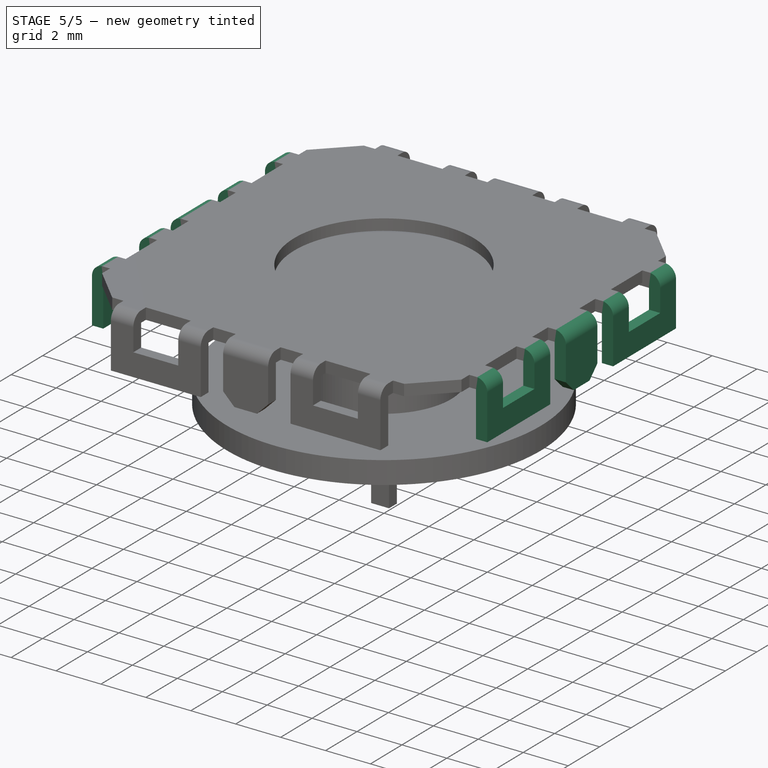
[diagram: stage 5 of 5 — iso view after this stage's code; geometry added in this stage tinted green]
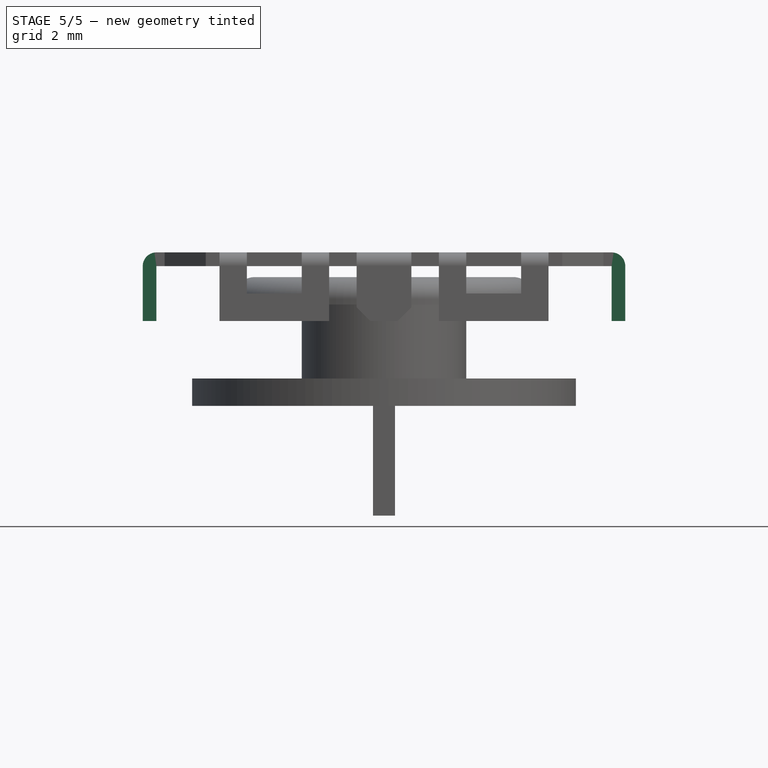
[diagram: stage 5 of 5 — front view after this stage's code; geometry added in this stage tinted green]
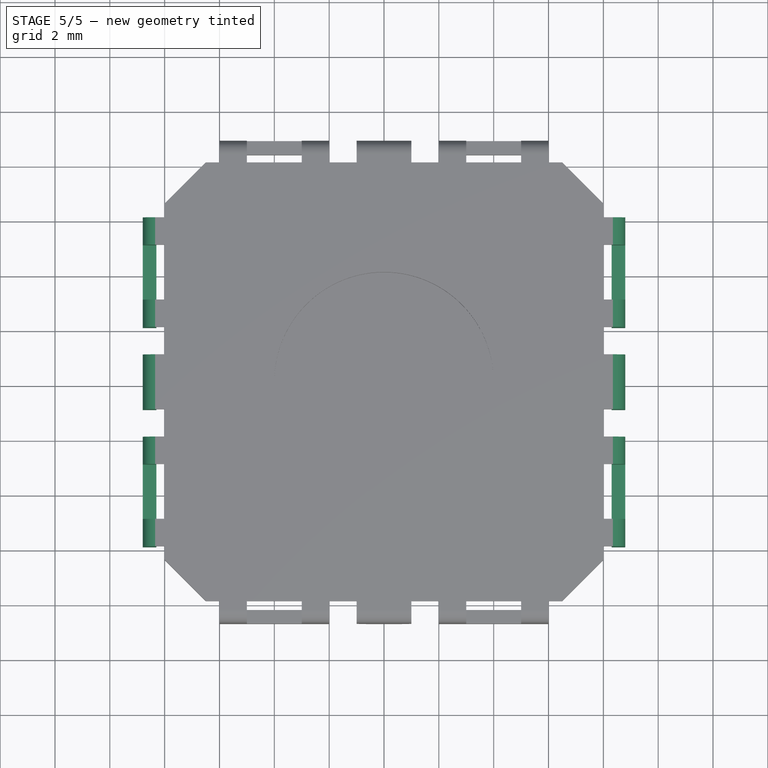
[diagram: stage 5 of 5 — top view after this stage's code; geometry added in this stage tinted green]
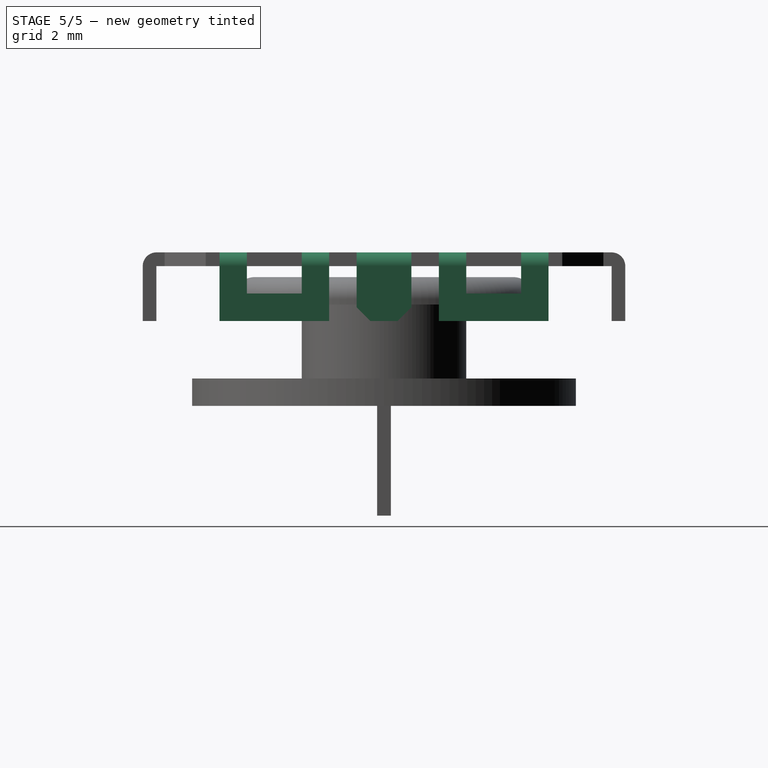
[diagram: stage 5 of 5 — right view after this stage's code; geometry added in this stage tinted green]
FEATURE [Sketcher::SketchObject] Sketch004
  AttachmentSupport = -> [Mirrored]
  ExternalGeometry = -> [Mirrored]
  FullyConstrained = true
  MapMode = 5
  Placement = pos=(-8.3,0,0) rot=(0.57735,-0.57735,-0.57735;2.0944rad)
  Support = -> [Mirrored]
  sketch-geometry (26):
    g0: LineSegment StartX=-6 StartY=5.1 StartZ=0 EndX=-5 EndY=5.1 EndZ=0
    g1: LineSegment StartX=-5 StartY=5.1 StartZ=0 EndX=-5 EndY=4.1 EndZ=0
    g2: LineSegment StartX=-5 StartY=4.1 StartZ=0 EndX=-3 EndY=4.1 EndZ=0
    g3: LineSegment StartX=-3 StartY=4.1 StartZ=0 EndX=-3 EndY=5.1 EndZ=0
    g4: LineSegment StartX=-3 StartY=5.1 StartZ=0 EndX=-2 EndY=5.1 EndZ=0
    g5: LineSegment StartX=-2 StartY=5.1 StartZ=0 EndX=-2 EndY=3.1 EndZ=0
    g6: LineSegment StartX=-2 StartY=3.1 StartZ=0 EndX=-6 EndY=3.1 EndZ=0
    g7: LineSegment StartX=-6 StartY=3.1 StartZ=0 EndX=-6 EndY=5.1 EndZ=0
    g8: LineSegment StartX=-1 StartY=5.1 StartZ=0 EndX=-1 EndY=3.6 EndZ=0
    g9: LineSegment StartX=-0.5 StartY=3.1 StartZ=0 EndX=0.5 EndY=3.1 EndZ=0
    g10: LineSegment StartX=1 StartY=3.6 StartZ=0 EndX=1 EndY=5.1 EndZ=0
    g11: LineSegment StartX=1 StartY=5.1 StartZ=0 EndX=-1 EndY=5.1 EndZ=0
    g12: LineSegment StartX=2 StartY=5.1 StartZ=0 EndX=2 EndY=3.1 EndZ=0
    g13: LineSegment StartX=2 StartY=3.1 StartZ=0 EndX=6 EndY=3.1 EndZ=0
    g14: LineSegment StartX=6 StartY=3.1 StartZ=0 EndX=6 EndY=5.1 EndZ=0
    g15: LineSegment StartX=6 StartY=5.1 StartZ=0 EndX=5 EndY=5.1 EndZ=0
    g16: LineSegment StartX=5 StartY=5.1 StartZ=0 EndX=5 EndY=4.1 EndZ=0
    g17: LineSegment StartX=5 StartY=4.1 StartZ=0 EndX=3 EndY=4.1 EndZ=0
    g18: LineSegment StartX=3 StartY=4.1 StartZ=0 EndX=3 EndY=5.1 EndZ=0
    g19: LineSegment StartX=3 StartY=5.1 StartZ=0 EndX=2 EndY=5.1 EndZ=0
    g20: ArcOfCircle CenterX=-0.5 CenterY=3.6 CenterZ=0 NormalX=0 NormalY=0 NormalZ=1 AngleXU=0 Radius=0.5 StartAngle=3.14159 EndAngle=4.71239
    g21: GeomPoint X=-1 Y=3.1 Z=0
    g22: LineSegment StartX=-1 StartY=3.6 StartZ=0 EndX=-0.5 EndY=3.1 EndZ=0
    g23: ArcOfCircle CenterX=0.5 CenterY=3.6 CenterZ=0 NormalX=0 NormalY=0 NormalZ=1 AngleXU=0 Radius=0.5 StartAngle=4.71239 EndAngle=6.28319
    g24: GeomPoint X=1 Y=3.1 Z=0
    g25: LineSegment StartX=0.5 StartY=3.1 StartZ=0 EndX=1 EndY=3.6 EndZ=0
  constraints (62):
    c: Coincident(g-3,g0)
    c: Coincident(g0,g-3)
    c: Coincident(g0,g1)
    c: Vertical(g1)
    c: Coincident(g1,g2)
    c: Horizontal(g2)
    c: Coincident(g2,g3)
    c: Coincident(g3,g-4)
    c: Coincident(g3,g4)
    c: Coincident(g4,g-4)
    c: Coincident(g4,g5)
    c: Coincident(g5,g6)
    c: Horizontal(g6)
    c: Coincident(g6,g7)
    c: Coincident(g7,g0)
    c: Coincident(g-5,g8)
    c: Vertical(g8)
    c: Horizontal(g9)
    c: Coincident(g10,g-5)
    c: Coincident(g10,g11)
    c: Coincident(g11,g8)
    c: Coincident(g-6,g12)
    c: Vertical(g12)
    c: Coincident(g12,g13)
    c: Horizontal(g13)
    c: Coincident(g13,g14)
    c: Coincident(g14,g-7)
    c: Coincident(g14,g15)
    c: Coincident(g15,g-7)
    c: Coincident(g15,g16)
    c: Vertical(g16)
    c: Coincident(g16,g17)
    c: Horizontal(g17)
    c: Coincident(g17,g18)
    c: Coincident(g18,g-6)
    c: Coincident(g18,g19)
    c: Coincident(g19,g12)
    c: Vertical(g18)
    c: Vertical(g14)
    c: Vertical(g10)
    c: Vertical(g3)
    c: Vertical(g7)
    c: DistanceY(g7,g7) = 2
    c: Vertical(g5)
    c: Equal(g1,g18)
    c: DistanceY(g1,g1) = 1
    c: Horizontal(g21,g5)
    c: Horizontal(g24,g12)
    c: PointOnObject(g21,g8)
    c: PointOnObject(g21,g9)
    c: Tangent(g8,g20) = -1.5708
    c: Tangent(g9,g20) = -1.5708
    c: Coincident(g22,g8)
    c: Coincident(g22,g9)
    c: PointOnObject(g24,g9)
    c: PointOnObject(g24,g10)
    c: Tangent(g9,g23) = -1.5708
    c: Tangent(g10,g23) = -1.5708
    c: Coincident(g25,g9)
    c: Coincident(g25,g10)
    c: Equal(g22,g25)
    c: DistanceX(g22,g22) = 0.5
FEATURE [PartDesign::Revolution] Revolution001
  Angle = 90
  Angle2 = 60
  Axis = (0,-1,0)
  Base = (-8.3,6,5.1)
  BaseFeature = -> Mirrored
  Profile = -> Mirrored [Face88,Face92,Face96,Face16,Face20]
  ReferenceAxis = -> Mirrored [Edge186]
  Suppressed = false
  Type = 0
FEATURE [PartDesign::Pad] Pad003
  BaseFeature = -> Revolution001
  Direction = (-1,0,0)
  Length = 0.5
  Length2 = 10
  Profile = -> Sketch004
  ReferenceAxis = -> Sketch004 [N_Axis]
  Suppressed = false
  Type = 0
FEATURE [PartDesign::Mirrored] Mirrored001
  BaseFeature = -> Pad003
  MirrorPlane = -> YZ_Plane002
  Originals = -> [Pad003,Revolution001]
  Suppressed = false
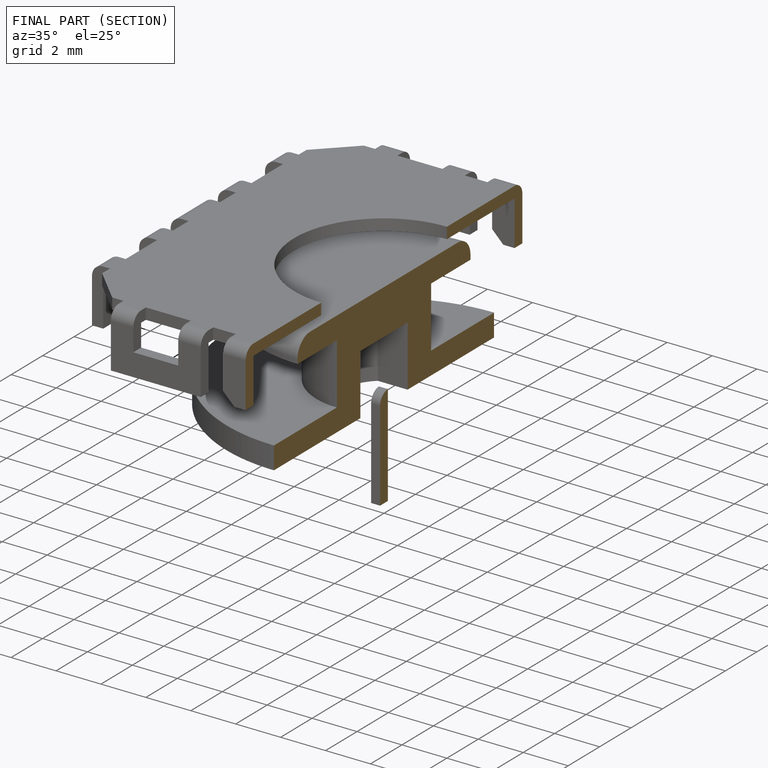
[diagram: finished part — half-section view (interior)]
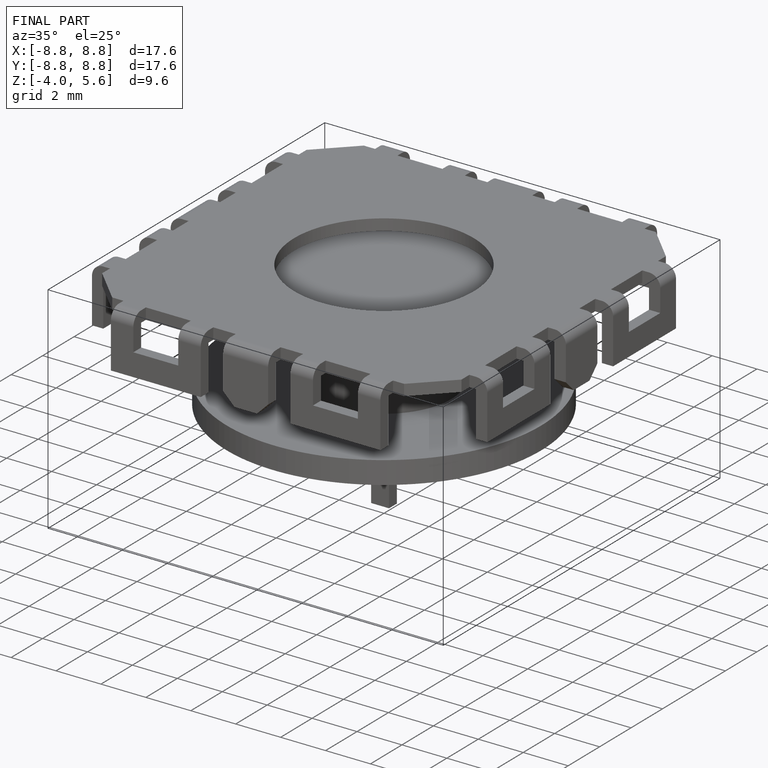
[diagram: finished part — iso view with bounding-box wireframe]
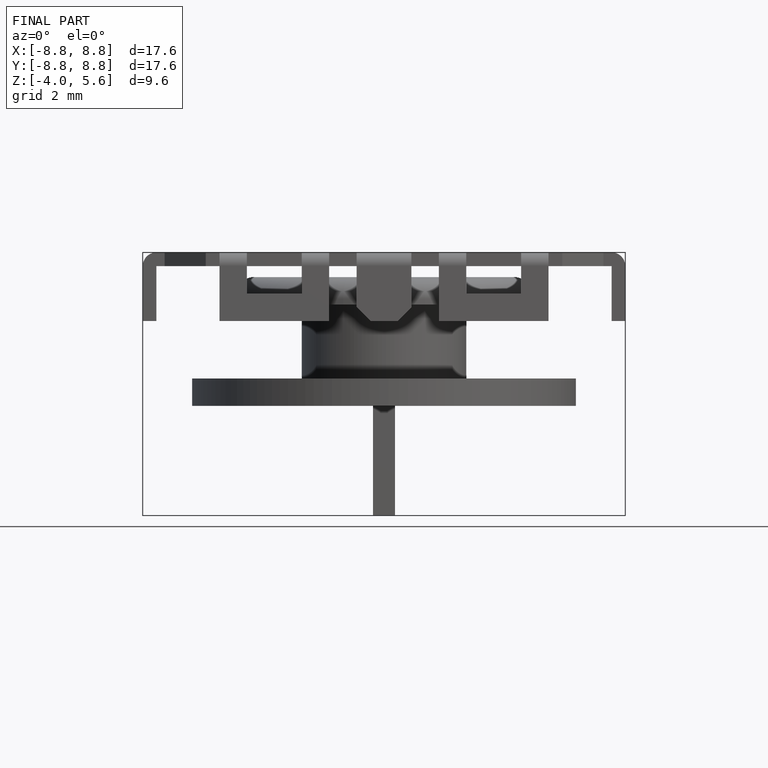
[diagram: finished part — front view with bounding-box wireframe]
